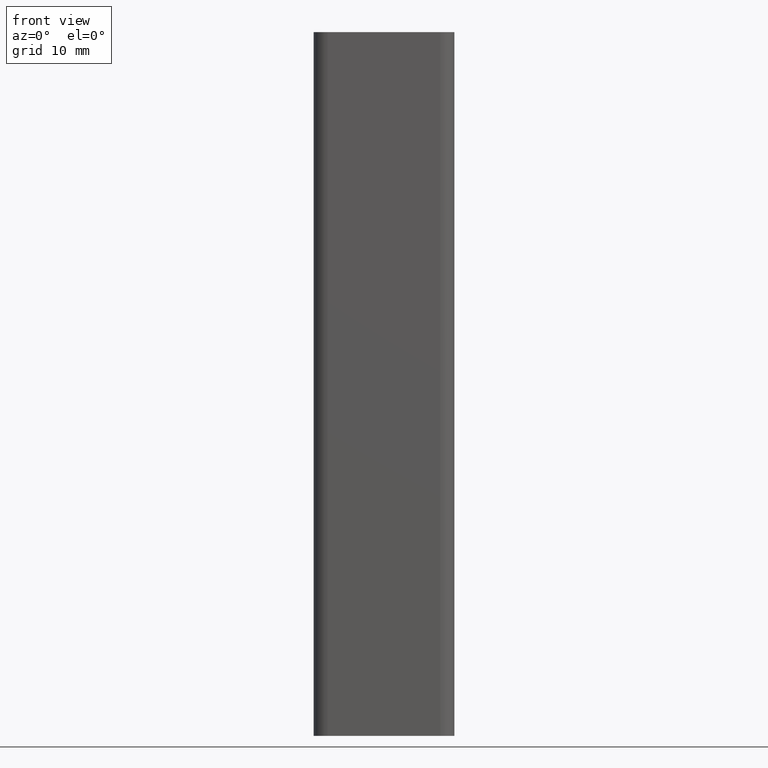
[diagram: clean part render]
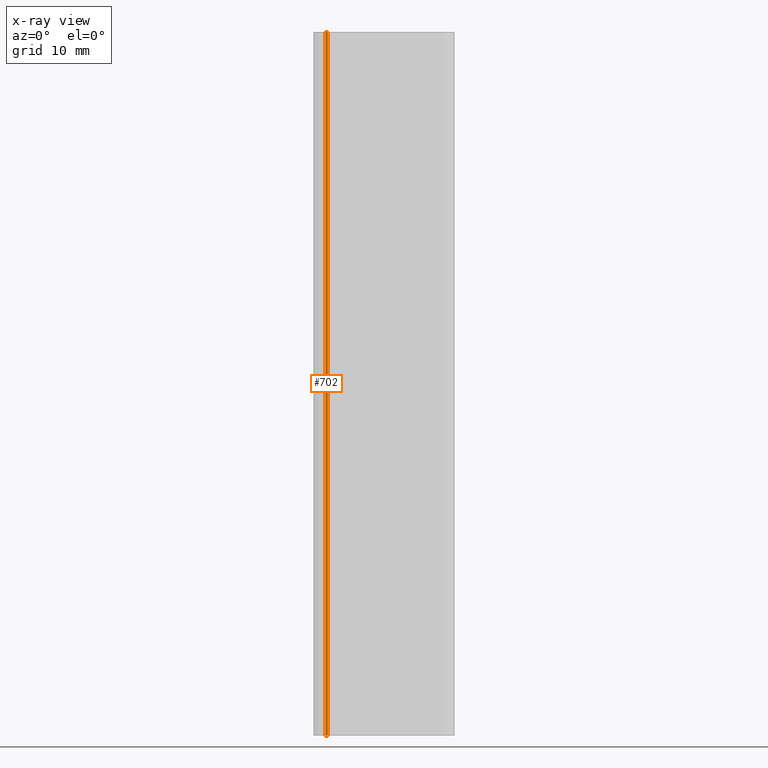
[diagram: x-ray — body ghosted, one internal face saturated and labeled with its STEP entity id]
A machine part, front view, then the same camera in x-ray: the body is ghosted and one INTERNAL B-rep face — a face not visible from any outside direction — is saturated and labeled: STEP entity #702.
In plain terms, the highlighted planar face has unit normal (0, -1, 0).
Its self-contained STEP definition (entity closure, byte-faithful):
#646=CARTESIAN_POINT('',(-18.300000000000296,-1.599999999999909,0.0));
#647=VERTEX_POINT('',#646);
#654=CARTESIAN_POINT('',(-18.300000000000296,-1.599999999999909,100.0));
#655=VERTEX_POINT('',#654);
#656=CARTESIAN_POINT('',(-18.300000000000296,-1.599999999999909,0.0));
#657=DIRECTION('',(0.0,0.0,1.0));
#658=VECTOR('',#657,100.0);
#659=LINE('',#656,#658);
#660=EDGE_CURVE('',#647,#655,#659,.T.);
#672=CARTESIAN_POINT('',(-18.300000000000296,-1.599999999999909,0.0));
#673=DIRECTION('',(0.0,-1.0,0.0));
#674=DIRECTION('',(1.0,0.0,0.0));
#675=AXIS2_PLACEMENT_3D('',#672,#673,#674);
#676=PLANE('',#675);
#677=CARTESIAN_POINT('',(-18.000000000000341,-1.599999999999909,0.0));
#678=VERTEX_POINT('',#677);
#679=CARTESIAN_POINT('',(-18.300000000000352,-1.599999999999909,0.0));
#680=DIRECTION('',(1.0,0.0,0.0));
#681=VECTOR('',#680,0.300000000000011);
#682=LINE('',#679,#681);
#683=EDGE_CURVE('',#647,#678,#682,.T.);
#684=ORIENTED_EDGE('',*,*,#683,.T.);
#685=CARTESIAN_POINT('',(-18.000000000000341,-1.599999999999909,100.0));
#686=VERTEX_POINT('',#685);
#687=CARTESIAN_POINT('',(-18.000000000000341,-1.599999999999909,0.0));
#688=DIRECTION('',(0.0,0.0,1.0));
#689=VECTOR('',#688,100.0);
#690=LINE('',#687,#689);
#691=EDGE_CURVE('',#678,#686,#690,.T.);
#692=ORIENTED_EDGE('',*,*,#691,.T.);
#693=CARTESIAN_POINT('',(-18.300000000000352,-1.599999999999909,100.0));
#694=DIRECTION('',(1.0,0.0,0.0));
#695=VECTOR('',#694,0.300000000000011);
#696=LINE('',#693,#695);
#697=EDGE_CURVE('',#655,#686,#696,.T.);
#698=ORIENTED_EDGE('',*,*,#697,.F.);
#699=ORIENTED_EDGE('',*,*,#660,.F.);
#700=EDGE_LOOP('',(#684,#692,#698,#699));
#701=FACE_OUTER_BOUND('',#700,.T.);
#702=ADVANCED_FACE('',(#701),#676,.T.);